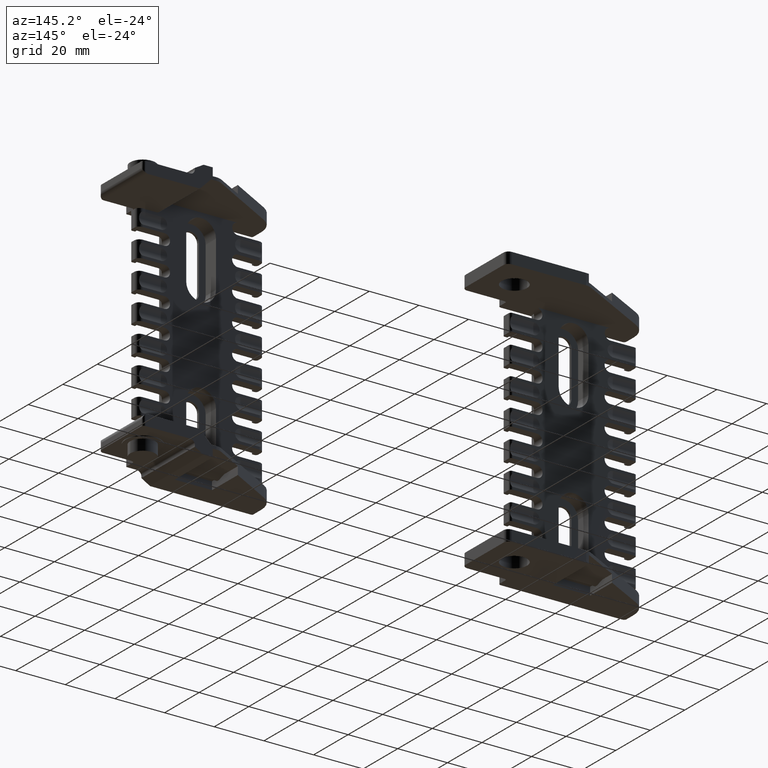
[diagram: clean part render]
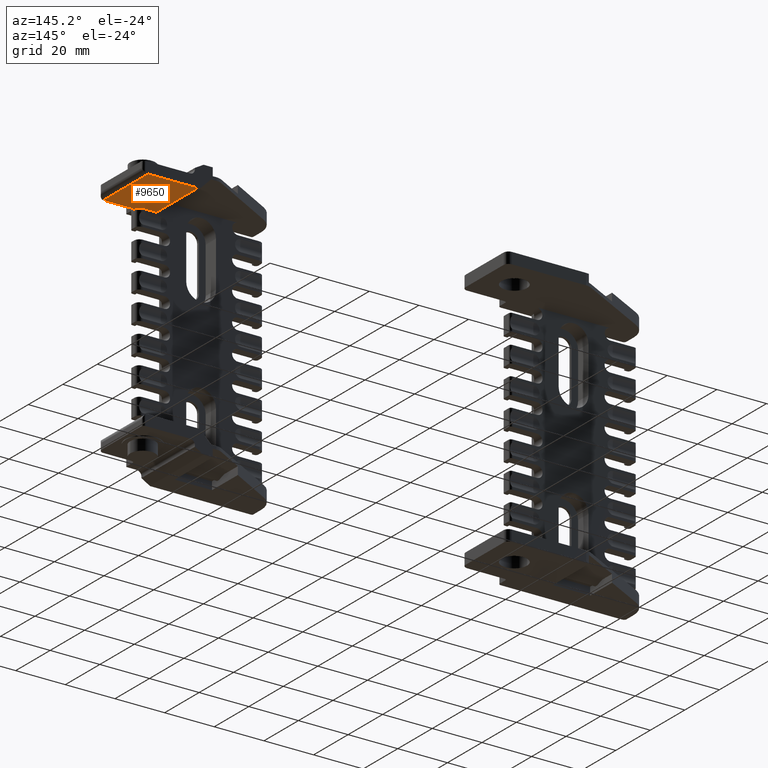
[diagram: same view with one face highlighted and labeled with its STEP entity id]
A machine part, auxiliary view. The second image highlights one B-rep face of the part: STEP entity #9650.
In plain terms, the highlighted planar face has unit normal (0, 0, 1).
Its self-contained STEP definition (entity closure, byte-faithful):
#156 = CARTESIAN_POINT ( 'NONE',  ( -8.000000000000000000, -11.50000000000000000, 43.50000000000000000 ) ) ;
#202 = VERTEX_POINT ( 'NONE', #9358 ) ;
#511 = CARTESIAN_POINT ( 'NONE',  ( 6.500000000000000000, 12.50000000000000000, 43.50000000000000000 ) ) ;
#553 = DIRECTION ( 'NONE',  ( -1.000000000000000000, 0.000000000000000000, 0.000000000000000000 ) ) ;
#780 = CARTESIAN_POINT ( 'NONE',  ( -5.000000000000000000, -13.50000000000000000, 43.50000000000000000 ) ) ;
#807 = CARTESIAN_POINT ( 'NONE',  ( -13.52157287525399987, -11.50000000000000000, 43.50000000000000000 ) ) ;
#2009 = PLANE ( 'NONE',  #17824 ) ;
#2061 = VERTEX_POINT ( 'NONE', #807 ) ;
#2339 = CARTESIAN_POINT ( 'NONE',  ( -5.000000000000690115, -14.49999999999930012, 43.50000000000000000 ) ) ;
#2506 = EDGE_CURVE ( 'NONE', #10467, #202, #17119, .T. ) ;
#2807 = CARTESIAN_POINT ( 'NONE',  ( -13.52157287525399987, -11.50000000000000000, 43.50000000000000000 ) ) ;
#3308 = CARTESIAN_POINT ( 'NONE',  ( -13.52157287525399987, 12.50000000000000000, 43.50000000000000000 ) ) ;
#3333 = DIRECTION ( 'NONE',  ( 1.000000000000000000, 0.000000000000000000, 0.000000000000000000 ) ) ;
#3494 = ORIENTED_EDGE ( 'NONE', *, *, #9269, .T. ) ;
#3666 = CARTESIAN_POINT ( 'NONE',  ( -6.000000000000000000, -14.49999999999930012, 43.50000000000000000 ) ) ;
#3989 = DIRECTION ( 'NONE',  ( -1.000000000000000000, 0.000000000000000000, 0.000000000000000000 ) ) ;
#4258 = DIRECTION ( 'NONE',  ( 0.000000000000000000, 0.000000000000000000, -1.000000000000000000 ) ) ;
#4633 = CARTESIAN_POINT ( 'NONE',  ( -8.000000000000149214, -13.50000000000015987, 43.50000000000000000 ) ) ;
#5080 = CARTESIAN_POINT ( 'NONE',  ( -5.000000000000000000, -13.50000000000000000, 43.50000000000000000 ) ) ;
#5155 = VERTEX_POINT ( 'NONE', #3666 ) ;
#5529 = VERTEX_POINT ( 'NONE', #19493 ) ;
#5728 = VERTEX_POINT ( 'NONE', #156 ) ;
#6202 = CIRCLE ( 'NONE', #19522, 2.000000000000154543 ) ;
#6261 = VECTOR ( 'NONE', #13719, 1000.000000000000000 ) ;
#6477 = LINE ( 'NONE', #22907, #6261 ) ;
#6748 = LINE ( 'NONE', #2807, #13607 ) ;
#7198 = DIRECTION ( 'NONE',  ( 1.000000000000000000, 0.000000000000000000, 0.000000000000000000 ) ) ;
#7421 = ORIENTED_EDGE ( 'NONE', *, *, #21762, .T. ) ;
#7966 = EDGE_CURVE ( 'NONE', #5155, #10467, #19301, .T. ) ;
#8837 = ORIENTED_EDGE ( 'NONE', *, *, #14970, .T. ) ;
#9102 = ORIENTED_EDGE ( 'NONE', *, *, #21556, .F. ) ;
#9269 = EDGE_CURVE ( 'NONE', #5155, #14649, #21599, .T. ) ;
#9287 = CARTESIAN_POINT ( 'NONE',  ( 6.500000000000000000, -11.50000000000000000, 43.50000000000000000 ) ) ;
#9315 = DIRECTION ( 'NONE',  ( 0.000000000000000000, 1.000000000000000000, 0.000000000000000000 ) ) ;
#9358 = CARTESIAN_POINT ( 'NONE',  ( 6.500000000000000000, -13.50000000000000000, 43.50000000000000000 ) ) ;
#9650 = ADVANCED_FACE ( 'NONE', ( #21933 ), #2009, .F. ) ;
#9735 = LINE ( 'NONE', #17014, #12820 ) ;
#9780 = ORIENTED_EDGE ( 'NONE', *, *, #18874, .T. ) ;
#9896 = ORIENTED_EDGE ( 'NONE', *, *, #10272, .T. ) ;
#10272 = EDGE_CURVE ( 'NONE', #2061, #13062, #6748, .T. ) ;
#10467 = VERTEX_POINT ( 'NONE', #5080 ) ;
#11753 = DIRECTION ( 'NONE',  ( 0.000000000000000000, 1.000000000000000000, 0.000000000000000000 ) ) ;
#12820 = VECTOR ( 'NONE', #553, 1000.000000000000000 ) ;
#12987 = ORIENTED_EDGE ( 'NONE', *, *, #2506, .F. ) ;
#13058 = DIRECTION ( 'NONE',  ( -6.912873051772354370E-13, -1.000000000000000000, 0.000000000000000000 ) ) ;
#13062 = VERTEX_POINT ( 'NONE', #3308 ) ;
#13607 = VECTOR ( 'NONE', #11753, 1000.000000000000000 ) ;
#13719 = DIRECTION ( 'NONE',  ( 0.000000000000000000, -1.000000000000000000, 0.000000000000000000 ) ) ;
#13951 = AXIS2_PLACEMENT_3D ( 'NONE', #2339, #4258, #13058 ) ;
#14534 = CARTESIAN_POINT ( 'NONE',  ( -6.000000000000000000, -14.49999999999930012, 43.50000000000000000 ) ) ;
#14649 = VERTEX_POINT ( 'NONE', #18578 ) ;
#14970 = EDGE_CURVE ( 'NONE', #5728, #2061, #9735, .T. ) ;
#15315 = DIRECTION ( 'NONE',  ( 1.000000000000000000, 0.000000000000000000, 0.000000000000000000 ) ) ;
#16049 = VECTOR ( 'NONE', #15315, 1000.000000000000000 ) ;
#16261 = DIRECTION ( 'NONE',  ( 0.000000000000000000, 0.000000000000000000, 1.000000000000000000 ) ) ;
#16731 = LINE ( 'NONE', #511, #20310 ) ;
#17014 = CARTESIAN_POINT ( 'NONE',  ( -8.000000000000000000, -11.50000000000000000, 43.50000000000000000 ) ) ;
#17119 = LINE ( 'NONE', #780, #16049 ) ;
#17824 = AXIS2_PLACEMENT_3D ( 'NONE', #9287, #18115, #3333 ) ;
#18115 = DIRECTION ( 'NONE',  ( 0.000000000000000000, 0.000000000000000000, 1.000000000000000000 ) ) ;
#18119 = EDGE_LOOP ( 'NONE', ( #8837, #9896, #9102, #7421, #12987, #21512, #3494, #9780 ) ) ;
#18209 = VECTOR ( 'NONE', #9315, 1000.000000000000000 ) ;
#18578 = CARTESIAN_POINT ( 'NONE',  ( -6.000000000000000000, -13.50000000000000000, 43.50000000000000000 ) ) ;
#18874 = EDGE_CURVE ( 'NONE', #14649, #5728, #6202, .T. ) ;
#19301 = CIRCLE ( 'NONE', #13951, 0.9999999999993087751 ) ;
#19493 = CARTESIAN_POINT ( 'NONE',  ( 6.500000000000000000, 12.50000000000000000, 43.50000000000000000 ) ) ;
#19522 = AXIS2_PLACEMENT_3D ( 'NONE', #4633, #16261, #7198 ) ;
#20310 = VECTOR ( 'NONE', #3989, 1000.000000000000000 ) ;
#21512 = ORIENTED_EDGE ( 'NONE', *, *, #7966, .F. ) ;
#21556 = EDGE_CURVE ( 'NONE', #5529, #13062, #16731, .T. ) ;
#21599 = LINE ( 'NONE', #14534, #18209 ) ;
#21762 = EDGE_CURVE ( 'NONE', #5529, #202, #6477, .T. ) ;
#21933 = FACE_OUTER_BOUND ( 'NONE', #18119, .T. ) ;
#22907 = CARTESIAN_POINT ( 'NONE',  ( 6.500000000000000000, 12.50000000000000000, 43.50000000000000000 ) ) ;